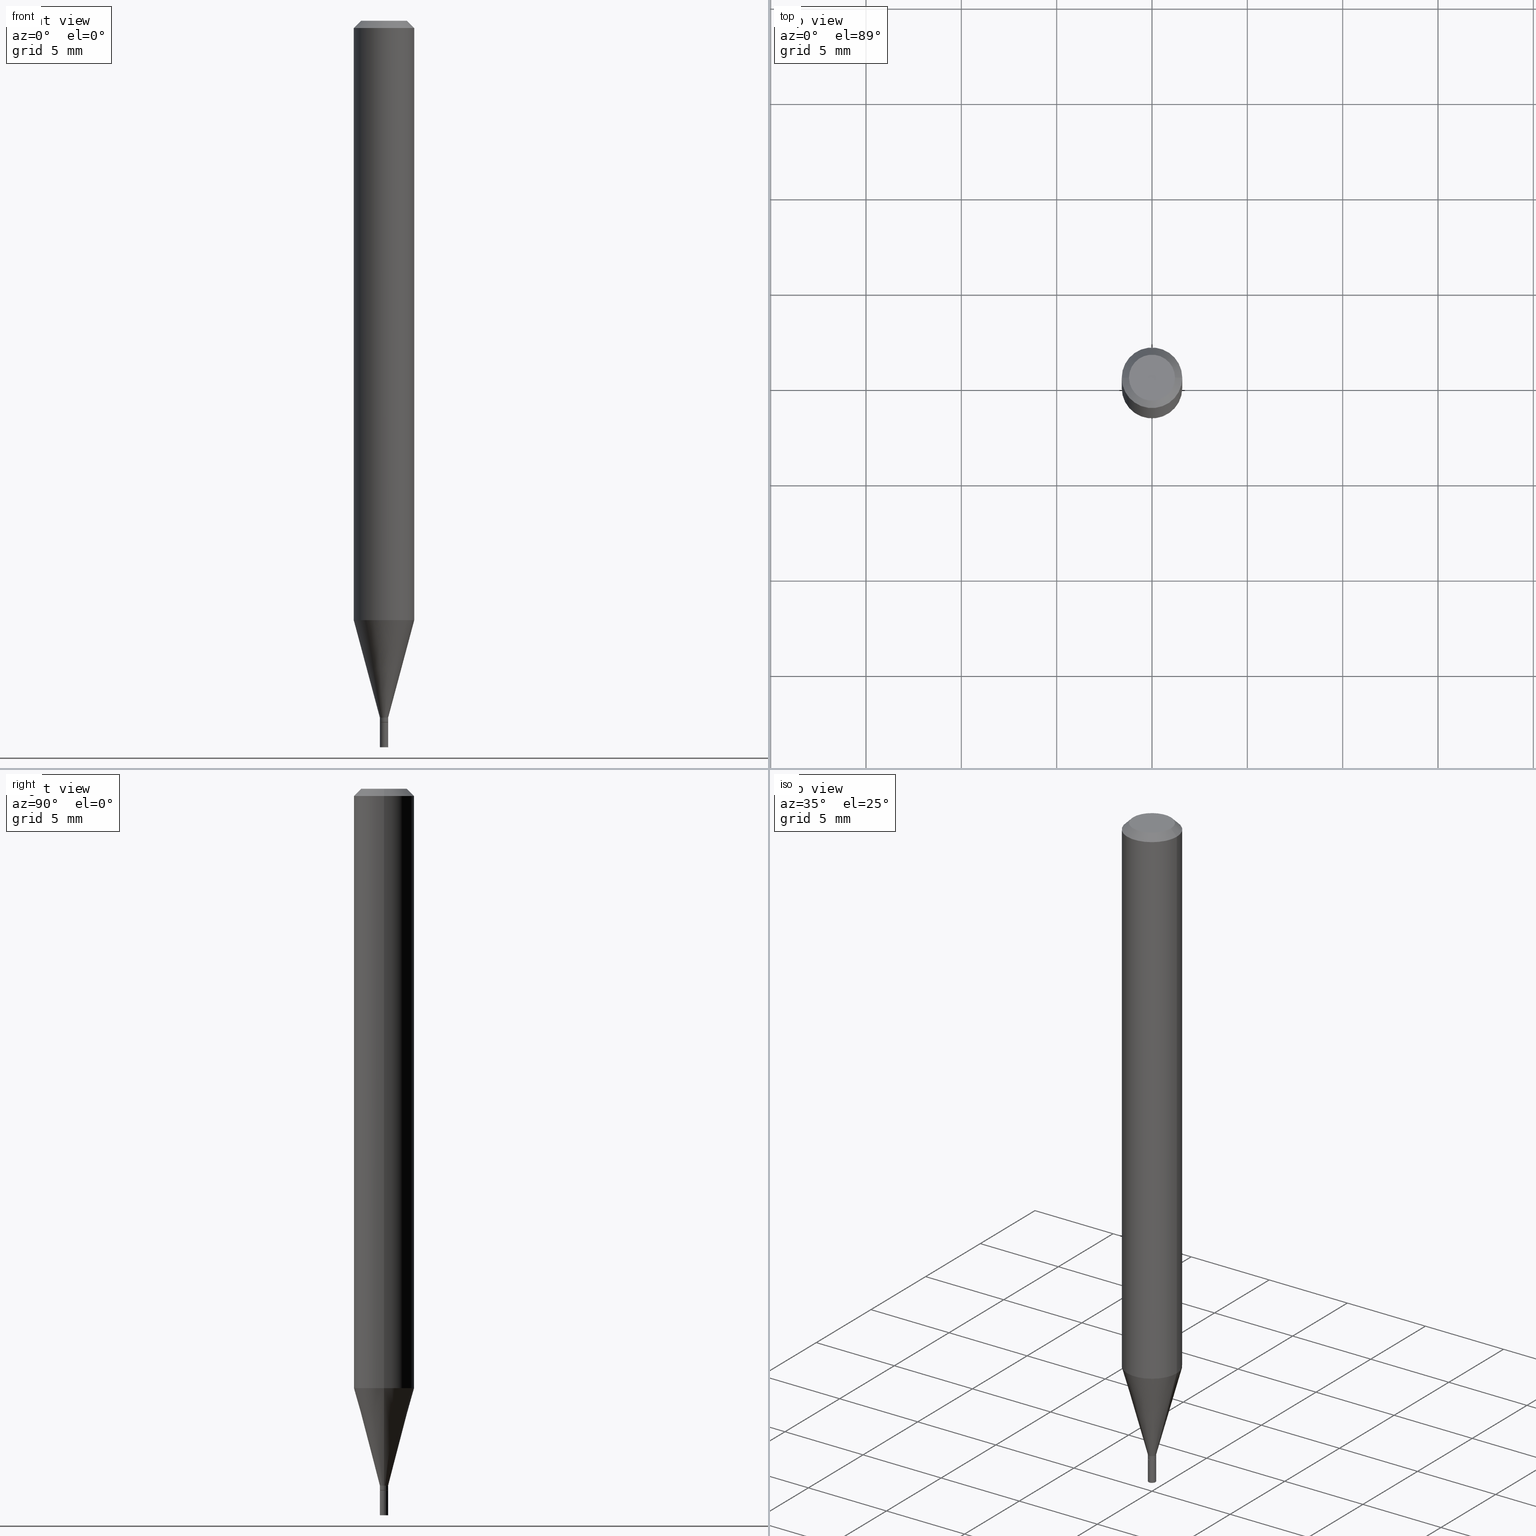
[diagram: canonical four-view strip — front | top / right | iso, engineering-drawing reading convention]
A machine part, canonical four-view strip (front | top / right | iso — engineering-drawing reading convention). The complete STEP part file that produces these views, byte-faithful:
ISO-10303-21;
HEADER;
FILE_DESCRIPTION (( 'STEP AP203' ),
    '1' );
FILE_NAME ('00526.STEP',
    '2024-03-19T21:31:26',
    ( '' ),
    ( '' ),
    'SwSTEP 2.0',
    'SolidWorks 2023',
    '' );
FILE_SCHEMA (( 'CONFIG_CONTROL_DESIGN' ));
ENDSEC;

DATA;
#1 = APPROVAL ( #323, 'UNSPECIFIED' ) ;
#2 = DATE_TIME_ROLE ( 'classification_date' ) ;
#3 = DIRECTION ( 'NONE',  ( 1.000000000000000000, -6.982962677686266711E-15, 4.876176775795935793E-29 ) ) ;
#4 = CARTESIAN_POINT ( 'NONE',  ( -0.06249999999999999306, -3.876511606232199217E-15, -1.237469256391281025 ) ) ;
#5 = SHAPE_DEFINITION_REPRESENTATION ( #379, #54 ) ;
#6 = AXIS2_PLACEMENT_3D ( 'NONE', #444, #440, #277 ) ;
#7 = DIRECTION ( 'NONE',  ( -2.445468806185136597E-29, 3.491481338843145583E-15, 1.000000000000000000 ) ) ;
#8 = ORIENTED_EDGE ( 'NONE', *, *, #185, .F. ) ;
#9 = APPLICATION_CONTEXT ( 'configuration controlled 3d designs of mechanical parts and assemblies' ) ;
#10 = EDGE_CURVE ( 'NONE', #317, #350, #342, .T. ) ;
#11 = AXIS2_PLACEMENT_3D ( 'NONE', #373, #23, #63 ) ;
#12 = EDGE_LOOP ( 'NONE', ( #376, #411, #180, #100 ) ) ;
#13 = ORIENTED_EDGE ( 'NONE', *, *, #271, .T. ) ;
#14 = AXIS2_PLACEMENT_3D ( 'NONE', #275, #372, #302 ) ;
#15 = DIRECTION ( 'NONE',  ( 2.438088387897960049E-29, -3.491481338843145188E-15, -1.000000000000000000 ) ) ;
#16 = EDGE_CURVE ( 'NONE', #371, #186, #267, .T. ) ;
#17 = CARTESIAN_POINT ( 'NONE',  ( 0.04749999999999999362, -4.035134999187553478E-16, 1.447116732001550281E-15 ) ) ;
#18 = ORIENTED_EDGE ( 'NONE', *, *, #316, .T. ) ;
#19 = CARTESIAN_POINT ( 'NONE',  ( 0.008500000000000000611, -5.296577191025051665E-15, -1.500000000000000222 ) ) ;
#20 = ORIENTED_EDGE ( 'NONE', *, *, #170, .T. ) ;
#21 = FACE_OUTER_BOUND ( 'NONE', #276, .T. ) ;
#22 = CARTESIAN_POINT ( 'NONE',  ( -0.008500000000000000611, -5.087793101584609375E-15, -1.500000000000000222 ) ) ;
#23 = DIRECTION ( 'NONE',  ( -2.445468806185136597E-29, 3.491481338843145583E-15, 1.000000000000000000 ) ) ;
#24 = CARTESIAN_POINT ( 'NONE',  ( 0.008000000000000000167, -5.115020161405208194E-15, -1.449000000000000066 ) ) ;
#25 = DIRECTION ( 'NONE',  ( -0.7071067811865642261, 7.493145998870414114E-15, 0.7071067811865309194 ) ) ;
#26 = CARTESIAN_POINT ( 'NONE',  ( -0.008499999999999922548, -4.420178560143938947E-15, -1.439000000000000057 ) ) ;
#27 = CARTESIAN_POINT ( 'NONE',  ( 0.06250000000000000000, -4.888073874380388472E-16, -0.01499999999999999944 ) ) ;
#28 = DIMENSIONAL_EXPONENTS ( 1.000000000000000000, 0.000000000000000000, 0.000000000000000000, 0.000000000000000000, 0.000000000000000000, 0.000000000000000000, 0.000000000000000000 ) ;
#29 = ORIENTED_EDGE ( 'NONE', *, *, #264, .F. ) ;
#30 = PRODUCT_RELATED_PRODUCT_CATEGORY ( 'detail', '', ( #344 ) ) ;
#31 = SECURITY_CLASSIFICATION ( '', '', #189 ) ;
#32 = EDGE_LOOP ( 'NONE', ( #90, #331 ) ) ;
#33 = ORIENTED_EDGE ( 'NONE', *, *, #146, .F. ) ;
#34 = CARTESIAN_POINT ( 'NONE',  ( 3.543484300162263247E-29, -5.059156459983718502E-15, -1.449000000000000066 ) ) ;
#35 = ORIENTED_EDGE ( 'NONE', *, *, #406, .T. ) ;
#36 = CARTESIAN_POINT ( 'NONE',  ( 3.668203209277704895E-29, -5.237222008264718177E-15, -1.500000000000000222 ) ) ;
#37 = AXIS2_PLACEMENT_3D ( 'NONE', #416, #101, #303 ) ;
#38 = LINE ( 'NONE', #110, #428 ) ;
#39 = PERSON_AND_ORGANIZATION ( #402, #333 ) ;
#40 = PERSON_AND_ORGANIZATION_ROLE ( 'design_supplier' ) ;
#41 = EDGE_CURVE ( 'NONE', #196, #165, #414, .T. ) ;
#42 = PERSON_AND_ORGANIZATION ( #402, #333 ) ;
#43 = COORDINATED_UNIVERSAL_TIME_OFFSET ( 5, 0, .BEHIND. ) ;
#44 = APPROVAL_PERSON_ORGANIZATION ( #42, #169, #120 ) ;
#45 = CYLINDRICAL_SURFACE ( 'NONE', #107, 0.06250000000000000000 ) ;
#46 = CC_DESIGN_DATE_AND_TIME_ASSIGNMENT ( #390, #127, ( #176 ) ) ;
#47 =( NAMED_UNIT ( * ) PLANE_ANGLE_UNIT ( ) SI_UNIT ( $, .RADIAN. ) );
#48 = AXIS2_PLACEMENT_3D ( 'NONE', #377, #313, #66 ) ;
#49 = CARTESIAN_POINT ( 'NONE',  ( -0.008499999999999922548, 6.039613253960796547E-17, -4.181094826716631533E-31 ) ) ;
#50 = CARTESIAN_POINT ( 'NONE',  ( 3.668203209277705088E-31, -5.237222008264718399E-17, -0.01499999999999999944 ) ) ;
#51 = CLOSED_SHELL ( 'NONE', ( #424, #238, #364, #453 ) ) ;
#52 = ORIENTED_EDGE ( 'NONE', *, *, #55, .F. ) ;
#53 = ORIENTED_EDGE ( 'NONE', *, *, #337, .F. ) ;
#54 = ADVANCED_BREP_SHAPE_REPRESENTATION ( '00526', ( #184, #190, #383 ), #433 ) ;
#55 = EDGE_CURVE ( 'NONE', #196, #363, #445, .T. ) ;
#56 = ORIENTED_EDGE ( 'NONE', *, *, #10, .T. ) ;
#57 = DIRECTION ( 'NONE',  ( -2.445468806185136597E-29, 3.491481338843145583E-15, 1.000000000000000000 ) ) ;
#58 = AXIS2_PLACEMENT_3D ( 'NONE', #36, #106, #254 ) ;
#59 = AXIS2_PLACEMENT_3D ( 'NONE', #132, #89, #198 ) ;
#60 = DIRECTION ( 'NONE',  ( 1.000000000000000000, -6.982962677686262766E-15, 0.000000000000000000 ) ) ;
#61 = VERTEX_POINT ( 'NONE', #24 ) ;
#62 = EDGE_CURVE ( 'NONE', #165, #371, #174, .T. ) ;
#63 = DIRECTION ( 'NONE',  ( 1.000000000000000000, -6.982962677686266711E-15, 4.876176775795936353E-29 ) ) ;
#64 = CARTESIAN_POINT ( 'NONE',  ( 0.000000000000000000, 0.000000000000000000, 0.000000000000000000 ) ) ;
#65 = VECTOR ( 'NONE', #145, 39.37007874015747433 ) ;
#66 = DIRECTION ( 'NONE',  ( -1.000000000000000000, 6.982962677686265922E-15, -4.876176775795935793E-29 ) ) ;
#67 = CARTESIAN_POINT ( 'NONE',  ( 0.06250000000000000000, -4.811533449433679005E-16, -0.01499999999999999944 ) ) ;
#68 = DIRECTION ( 'NONE',  ( -2.445468806185136597E-29, 3.491481338843145583E-15, 1.000000000000000000 ) ) ;
#69 = CARTESIAN_POINT ( 'NONE',  ( -0.008499999999999922548, -4.997014586774688823E-15, -1.448500000000000121 ) ) ;
#70 = AXIS2_PLACEMENT_3D ( 'NONE', #341, #113, #222 ) ;
#71 = CIRCLE ( 'NONE', #282, 0.06250000000000000000 ) ;
#72 = VERTEX_POINT ( 'NONE', #214 ) ;
#73 = DESIGN_CONTEXT ( 'detailed design', #9, 'design' ) ;
#74 = LENGTH_MEASURE_WITH_UNIT ( LENGTH_MEASURE( 0.02539999999999999897 ), #382 );
#75 = ORIENTED_EDGE ( 'NONE', *, *, #125, .T. ) ;
#76 = ORIENTED_EDGE ( 'NONE', *, *, #319, .T. ) ;
#77 = PERSON_AND_ORGANIZATION ( #402, #333 ) ;
#78 = ADVANCED_FACE ( 'NONE', ( #398 ), #45, .T. ) ;
#79 = CARTESIAN_POINT ( 'NONE',  ( 0.008500000000000000611, -5.118511642744051990E-15, -1.449000000000000066 ) ) ;
#80 = FACE_OUTER_BOUND ( 'NONE', #346, .T. ) ;
#81 = DATE_AND_TIME ( #266, #291 ) ;
#82 = APPROVAL_STATUS ( 'not_yet_approved' ) ;
#83 = CONICAL_SURFACE ( 'NONE', #225, 0.008000000000000000167, 0.7853981633974718157 ) ;
#84 = VECTOR ( 'NONE', #297, 39.37007874015748143 ) ;
#85 = DIRECTION ( 'NONE',  ( 2.445468806185136597E-29, -3.491481338843145583E-15, -1.000000000000000000 ) ) ;
#86 = ORIENTED_EDGE ( 'NONE', *, *, #210, .F. ) ;
#87 = LOCAL_TIME ( 17, 31, 26.00000000000000000, #462 ) ;
#88 = DIRECTION ( 'NONE',  ( -2.445468806185136597E-29, 3.491481338843145583E-15, 1.000000000000000000 ) ) ;
#89 = DIRECTION ( 'NONE',  ( -2.445468806185136597E-29, 3.491481338843145583E-15, 1.000000000000000000 ) ) ;
#90 = ORIENTED_EDGE ( 'NONE', *, *, #170, .F. ) ;
#91 = ADVANCED_FACE ( 'NONE', ( #232 ), #404, .T. ) ;
#92 = ADVANCED_FACE ( 'NONE', ( #164 ), #269, .F. ) ;
#93 = DIRECTION ( 'NONE',  ( -1.000000000000000000, 6.982962677686265922E-15, -4.876176775795935793E-29 ) ) ;
#94 = ORIENTED_EDGE ( 'NONE', *, *, #203, .T. ) ;
#95 = ORIENTED_EDGE ( 'NONE', *, *, #271, .F. ) ;
#96 = EDGE_CURVE ( 'NONE', #165, #166, #234, .T. ) ;
#97 = DIRECTION ( 'NONE',  ( 1.000000000000000000, -6.982962677686225690E-15, 0.000000000000000000 ) ) ;
#98 = CARTESIAN_POINT ( 'NONE',  ( -0.06250000000000000000, 4.440892098500626162E-16, -3.074334431409316114E-30 ) ) ;
#99 = FACE_OUTER_BOUND ( 'NONE', #334, .T. ) ;
#100 = ORIENTED_EDGE ( 'NONE', *, *, #360, .F. ) ;
#101 = DIRECTION ( 'NONE',  ( -2.445468806185136597E-29, 3.491481338843145583E-15, 1.000000000000000000 ) ) ;
#102 = DIRECTION ( 'NONE',  ( 1.000000000000000000, -6.982962677686267499E-15, 5.108144071313017768E-29 ) ) ;
#103 = DIRECTION ( 'NONE',  ( 0.7071067811865134889, -7.319954787623140872E-15, -0.7071067811865816566 ) ) ;
#104 = CARTESIAN_POINT ( 'NONE',  ( 0.008499999999999922548, -5.083596829355619552E-15, -1.439000000000000057 ) ) ;
#105 = ORIENTED_EDGE ( 'NONE', *, *, #403, .F. ) ;
#106 = DIRECTION ( 'NONE',  ( -2.445468806185136597E-29, 3.491481338843145583E-15, 1.000000000000000000 ) ) ;
#107 = AXIS2_PLACEMENT_3D ( 'NONE', #325, #394, #3 ) ;
#108 = CARTESIAN_POINT ( 'NONE',  ( 0.06250000000000000000, -4.364351673553916694E-16, 3.047610484872459871E-30 ) ) ;
#109 = VERTEX_POINT ( 'NONE', #412 ) ;
#110 = CARTESIAN_POINT ( 'NONE',  ( -0.008000000000000000167, -5.002313041122910436E-15, -1.449000000000000066 ) ) ;
#111 = PRODUCT_DEFINITION_FORMATION_WITH_SPECIFIED_SOURCE ( 'ANY', '', #344, .NOT_KNOWN. ) ;
#112 = AXIS2_PLACEMENT_3D ( 'NONE', #64, #426, #415 ) ;
#113 = DIRECTION ( 'NONE',  ( -2.445468806185136597E-29, 3.491481338843145583E-15, 1.000000000000000000 ) ) ;
#114 = APPROVAL_STATUS ( 'not_yet_approved' ) ;
#115 = DIRECTION ( 'NONE',  ( -2.445468806185136597E-29, 3.491481338843145583E-15, 1.000000000000000000 ) ) ;
#116 = CARTESIAN_POINT ( 'NONE',  ( 0.008499999999999922548, -5.116765902074629697E-15, -1.448500000000000121 ) ) ;
#117 = PERSON_AND_ORGANIZATION ( #402, #333 ) ;
#118 = DIRECTION ( 'NONE',  ( 1.000000000000000000, -6.982962677686266711E-15, 0.000000000000000000 ) ) ;
#119 = CC_DESIGN_APPROVAL ( #270, ( #31 ) ) ;
#120 = APPROVAL_ROLE ( '' ) ;
#121 = CC_DESIGN_PERSON_AND_ORGANIZATION_ASSIGNMENT ( #272, #465, ( #176 ) ) ;
#122 = DIRECTION ( 'NONE',  ( 1.000000000000000000, -6.982962677686225690E-15, 0.000000000000000000 ) ) ;
#123 = APPROVAL_ROLE ( '' ) ;
#124 = AXIS2_PLACEMENT_3D ( 'NONE', #380, #68, #182 ) ;
#125 = EDGE_CURVE ( 'NONE', #259, #350, #308, .T. ) ;
#126 = CARTESIAN_POINT ( 'NONE',  ( 3.668203209277705088E-31, -5.237222008264718399E-17, -0.01499999999999999944 ) ) ;
#127 = DATE_TIME_ROLE ( 'creation_date' ) ;
#128 = ADVANCED_FACE ( 'NONE', ( #179 ), #83, .T. ) ;
#129 = EDGE_LOOP ( 'NONE', ( #20, #94, #33, #281 ) ) ;
#130 = CARTESIAN_POINT ( 'NONE',  ( 3.668203209277704895E-29, -5.237222008264718177E-15, -1.500000000000000222 ) ) ;
#131 = ORIENTED_EDGE ( 'NONE', *, *, #96, .T. ) ;
#132 = CARTESIAN_POINT ( 'NONE',  ( 3.542261565759170446E-29, -5.057410719314296998E-15, -1.448500000000000121 ) ) ;
#133 = CARTESIAN_POINT ( 'NONE',  ( 3.026192465117994899E-29, -4.320600816082261833E-15, -1.237469256391281025 ) ) ;
#134 = AXIS2_PLACEMENT_3D ( 'NONE', #257, #310, #351 ) ;
#135 = ORIENTED_EDGE ( 'NONE', *, *, #221, .T. ) ;
#136 = CIRCLE ( 'NONE', #228, 0.04749999999999999362 ) ;
#137 = ORIENTED_EDGE ( 'NONE', *, *, #356, .T. ) ;
#138 = ADVANCED_FACE ( 'NONE', ( #21 ), #247, .T. ) ;
#139 = FACE_OUTER_BOUND ( 'NONE', #407, .T. ) ;
#140 = CARTESIAN_POINT ( 'NONE',  ( 3.542261565759170446E-29, -5.057410719314296998E-15, -1.448500000000000121 ) ) ;
#141 = FACE_OUTER_BOUND ( 'NONE', #215, .T. ) ;
#142 = CARTESIAN_POINT ( 'NONE',  ( 0.008499999999999922548, -5.935518276033272371E-17, 4.144750259426508219E-31 ) ) ;
#143 = FACE_OUTER_BOUND ( 'NONE', #129, .T. ) ;
#144 = AXIS2_PLACEMENT_3D ( 'NONE', #328, #15, #93 ) ;
#145 = DIRECTION ( 'NONE',  ( 0.2588190451025214611, 1.565188264969621573E-15, 0.9659258262890682012 ) ) ;
#146 = EDGE_CURVE ( 'NONE', #243, #443, #413, .T. ) ;
#147 = EDGE_LOOP ( 'NONE', ( #251, #294 ) ) ;
#148 = LINE ( 'NONE', #452, #405 ) ;
#149 = AXIS2_PLACEMENT_3D ( 'NONE', #419, #150, #212 ) ;
#150 = DIRECTION ( 'NONE',  ( -2.445468806185136597E-29, 3.491481338843145583E-15, 1.000000000000000000 ) ) ;
#151 = CONICAL_SURFACE ( 'NONE', #397, 0.06250000000000000000, 0.7853981633974000953 ) ;
#152 = EDGE_LOOP ( 'NONE', ( #208, #199, #250, #451 ) ) ;
#153 = DIRECTION ( 'NONE',  ( 1.000000000000000000, -6.982962677686267499E-15, 4.876176775795935793E-29 ) ) ;
#154 = DIRECTION ( 'NONE',  ( -2.445468806185136597E-29, 3.491481338843145583E-15, 1.000000000000000000 ) ) ;
#155 = ADVANCED_FACE ( 'NONE', ( #384 ), #220, .T. ) ;
#156 = DIRECTION ( 'NONE',  ( -2.438088387897960049E-29, 3.491481338843145188E-15, 1.000000000000000000 ) ) ;
#157 = CALENDAR_DATE ( 2024, 19, 3 ) ;
#158 = VECTOR ( 'NONE', #219, 39.37007874015748143 ) ;
#159 = DIRECTION ( 'NONE',  ( 0.000000000000000000, 0.000000000000000000, 1.000000000000000000 ) ) ;
#160 = CALENDAR_DATE ( 2024, 19, 3 ) ;
#161 = CARTESIAN_POINT ( 'NONE',  ( -0.06250000000000000000, 3.840629472727444916E-16, -0.01499999999999999944 ) ) ;
#162 = CONICAL_SURFACE ( 'NONE', #172, 0.06250000000000000000, 0.7853981633974000953 ) ;
#163 = PERSON_AND_ORGANIZATION_ROLE ( 'design_owner' ) ;
#164 = FACE_OUTER_BOUND ( 'NONE', #187, .T. ) ;
#165 = VERTEX_POINT ( 'NONE', #352 ) ;
#166 = VERTEX_POINT ( 'NONE', #26 ) ;
#167 = AXIS2_PLACEMENT_3D ( 'NONE', #130, #57, #204 ) ;
#168 = AXIS2_PLACEMENT_3D ( 'NONE', #140, #340, #97 ) ;
#169 = APPROVAL ( #114, 'UNSPECIFIED' ) ;
#170 = EDGE_CURVE ( 'NONE', #224, #425, #335, .T. ) ;
#171 = VECTOR ( 'NONE', #217, 39.37007874015748143 ) ;
#172 = AXIS2_PLACEMENT_3D ( 'NONE', #173, #305, #347 ) ;
#173 = CARTESIAN_POINT ( 'NONE',  ( 3.668203209277705088E-31, -5.237222008264718399E-17, -0.01499999999999999944 ) ) ;
#174 = LINE ( 'NONE', #104, #65 ) ;
#175 = LINE ( 'NONE', #178, #447 ) ;
#176 = PRODUCT_DEFINITION ( 'UNKNOWN', '', #111, #73 ) ;
#177 = UNCERTAINTY_MEASURE_WITH_UNIT (LENGTH_MEASURE( 1.000000000000000082E-05 ), #353, 'distance_accuracy_value', 'NONE');
#178 = CARTESIAN_POINT ( 'NONE',  ( 0.008500000000000000611, -5.935518276033327838E-17, 4.144750259426545879E-31 ) ) ;
#179 = FACE_OUTER_BOUND ( 'NONE', #329, .T. ) ;
#180 = ORIENTED_EDGE ( 'NONE', *, *, #311, .F. ) ;
#181 = DIRECTION ( 'NONE',  ( 1.000000000000000000, -6.982962677686211490E-15, 0.000000000000000000 ) ) ;
#182 = DIRECTION ( 'NONE',  ( 1.000000000000000000, -6.982962677686225690E-15, 0.000000000000000000 ) ) ;
#183 = CARTESIAN_POINT ( 'NONE',  ( 0.06249999999999999306, -4.757035983437653502E-15, -1.237469256391281025 ) ) ;
#184 = MANIFOLD_SOLID_BREP ( 'Body-Move/Copy2[1]', #51 ) ;
#185 = EDGE_CURVE ( 'NONE', #166, #165, #396, .T. ) ;
#186 = VERTEX_POINT ( 'NONE', #4 ) ;
#187 = EDGE_LOOP ( 'NONE', ( #456, #53 ) ) ;
#188 = COORDINATED_UNIVERSAL_TIME_OFFSET ( 5, 0, .BEHIND. ) ;
#189 = SECURITY_CLASSIFICATION_LEVEL ( 'unclassified' ) ;
#190 = MANIFOLD_SOLID_BREP ( 'Body-Move/Copy2[2]', #457 ) ;
#191 = DIRECTION ( 'NONE',  ( 1.000000000000000000, 0.000000000000000000, 0.000000000000000000 ) ) ;
#192 = LINE ( 'NONE', #252, #336 ) ;
#193 = APPROVAL_DATE_TIME ( #235, #270 ) ;
#194 = AXIS2_PLACEMENT_3D ( 'NONE', #260, #154, #389 ) ;
#195 = APPROVAL_PERSON_ORGANIZATION ( #431, #270, #123 ) ;
#196 = VERTEX_POINT ( 'NONE', #116 ) ;
#197 = ADVANCED_FACE ( 'NONE', ( #358 ), #151, .T. ) ;
#198 = DIRECTION ( 'NONE',  ( 1.000000000000000000, -6.982962677686225690E-15, 0.000000000000000000 ) ) ;
#199 = ORIENTED_EDGE ( 'NONE', *, *, #185, .T. ) ;
#200 = ORIENTED_EDGE ( 'NONE', *, *, #356, .F. ) ;
#201 = AXIS2_PLACEMENT_3D ( 'NONE', #244, #442, #370 ) ;
#202 = CARTESIAN_POINT ( 'NONE',  ( -0.06250000000000000000, -1.742397308232391840E-15, -0.01499999999999999944 ) ) ;
#203 = EDGE_CURVE ( 'NONE', #425, #443, #278, .T. ) ;
#204 = DIRECTION ( 'NONE',  ( 1.000000000000000000, -6.982962677686274599E-15, 0.000000000000000000 ) ) ;
#205 = CIRCLE ( 'NONE', #59, 0.008499999999999922548 ) ;
#206 = DIRECTION ( 'NONE',  ( -2.445468806185136877E-29, 3.491481338843145188E-15, 1.000000000000000000 ) ) ;
#207 = CYLINDRICAL_SURFACE ( 'NONE', #256, 0.008500000000000000611 ) ;
#208 = ORIENTED_EDGE ( 'NONE', *, *, #279, .F. ) ;
#209 = CARTESIAN_POINT ( 'NONE',  ( -0.008500000000000000611, -5.087793101584609375E-15, -1.449000000000000066 ) ) ;
#210 = EDGE_CURVE ( 'NONE', #363, #196, #205, .T. ) ;
#211 = AXIS2_PLACEMENT_3D ( 'NONE', #429, #7, #122 ) ;
#212 = DIRECTION ( 'NONE',  ( 1.000000000000000000, -6.982962677686266711E-15, 4.876176775795936353E-29 ) ) ;
#213 = DIRECTION ( 'NONE',  ( -2.445468806185136597E-29, 3.491481338843145583E-15, 1.000000000000000000 ) ) ;
#214 = CARTESIAN_POINT ( 'NONE',  ( -0.04749999999999999362, 3.578768372314235651E-16, 1.447116732001545153E-15 ) ) ;
#215 = EDGE_LOOP ( 'NONE', ( #435, #75, #345, #95 ) ) ;
#216 = CC_DESIGN_APPROVAL ( #1, ( #111 ) ) ;
#217 = DIRECTION ( 'NONE',  ( -2.445468806185136877E-29, 3.491481338843145188E-15, 1.000000000000000000 ) ) ;
#218 = APPROVAL_PERSON_ORGANIZATION ( #39, #1, #293 ) ;
#219 = DIRECTION ( 'NONE',  ( -2.445468806185136877E-29, 3.491481338843145188E-15, 1.000000000000000000 ) ) ;
#220 = CYLINDRICAL_SURFACE ( 'NONE', #149, 0.008499999999999922548 ) ;
#221 = EDGE_CURVE ( 'NONE', #186, #371, #268, .T. ) ;
#222 = DIRECTION ( 'NONE',  ( 1.000000000000000000, -6.982962677686211490E-15, 0.000000000000000000 ) ) ;
#223 = EDGE_CURVE ( 'NONE', #186, #317, #374, .T. ) ;
#224 = VERTEX_POINT ( 'NONE', #19 ) ;
#225 = AXIS2_PLACEMENT_3D ( 'NONE', #280, #343, #448 ) ;
#226 = PERSON_AND_ORGANIZATION ( #402, #333 ) ;
#227 = PERSON_AND_ORGANIZATION_ROLE ( 'creator' ) ;
#228 = AXIS2_PLACEMENT_3D ( 'NONE', #249, #375, #102 ) ;
#229 = PLANE ( 'NONE',  #144 ) ;
#230 = CALENDAR_DATE ( 2024, 19, 3 ) ;
#231 = CC_DESIGN_DATE_AND_TIME_ASSIGNMENT ( #81, #2, ( #31 ) ) ;
#232 = FACE_OUTER_BOUND ( 'NONE', #388, .T. ) ;
#233 = VECTOR ( 'NONE', #103, 39.37007874015748143 ) ;
#234 = CIRCLE ( 'NONE', #321, 0.008499999999999922548 ) ;
#235 = DATE_AND_TIME ( #230, #265 ) ;
#236 = CARTESIAN_POINT ( 'NONE',  ( 0.000000000000000000, 0.000000000000000000, 0.000000000000000000 ) ) ;
#237 = DIRECTION ( 'NONE',  ( -1.000000000000000000, 6.982962677686266711E-15, 0.000000000000000000 ) ) ;
#238 = ADVANCED_FACE ( 'NONE', ( #441 ), #246, .F. ) ;
#239 = AXIS2_PLACEMENT_3D ( 'NONE', #418, #290, #420 ) ;
#240 = ORIENTED_EDGE ( 'NONE', *, *, #360, .T. ) ;
#241 = DIRECTION ( 'NONE',  ( 1.000000000000000000, -6.982962677686266711E-15, 0.000000000000000000 ) ) ;
#242 = EDGE_LOOP ( 'NONE', ( #359, #332, #386, #439 ) ) ;
#243 = VERTEX_POINT ( 'NONE', #79 ) ;
#244 = CARTESIAN_POINT ( 'NONE',  ( 3.543484300162263247E-29, -5.059156459983718502E-15, -1.449000000000000066 ) ) ;
#245 = VECTOR ( 'NONE', #446, 39.37007874015748143 ) ;
#246 = PLANE ( 'NONE',  #14 ) ;
#247 = CYLINDRICAL_SURFACE ( 'NONE', #11, 0.008499999999999922548 ) ;
#248 = DIRECTION ( 'NONE',  ( -2.445468806185136597E-29, 3.491481338843145583E-15, 1.000000000000000000 ) ) ;
#249 = CARTESIAN_POINT ( 'NONE',  ( -3.538878827018360888E-44, 5.052581064911080951E-30, 1.447116732001547520E-15 ) ) ;
#250 = ORIENTED_EDGE ( 'NONE', *, *, #62, .T. ) ;
#251 = ORIENTED_EDGE ( 'NONE', *, *, #146, .T. ) ;
#252 = CARTESIAN_POINT ( 'NONE',  ( -0.008499999999999922548, -4.963845514055678678E-15, -1.439000000000000057 ) ) ;
#253 = FACE_OUTER_BOUND ( 'NONE', #147, .T. ) ;
#254 = DIRECTION ( 'NONE',  ( 1.000000000000000000, -6.982962677686274599E-15, 0.000000000000000000 ) ) ;
#255 = ORIENTED_EDGE ( 'NONE', *, *, #437, .T. ) ;
#256 = AXIS2_PLACEMENT_3D ( 'NONE', #285, #460, #153 ) ;
#257 = CARTESIAN_POINT ( 'NONE',  ( 0.000000000000000000, 0.000000000000000000, 0.000000000000000000 ) ) ;
#258 = AXIS2_PLACEMENT_3D ( 'NONE', #34, #213, #181 ) ;
#259 = VERTEX_POINT ( 'NONE', #17 ) ;
#260 = CARTESIAN_POINT ( 'NONE',  ( 3.519029612100411702E-29, -5.024241646595286853E-15, -1.439000000000000057 ) ) ;
#261 = APPROVAL_DATE_TIME ( #300, #169 ) ;
#262 = LINE ( 'NONE', #49, #288 ) ;
#263 = APPROVAL_DATE_TIME ( #318, #1 ) ;
#264 = EDGE_CURVE ( 'NONE', #363, #166, #262, .T. ) ;
#265 = LOCAL_TIME ( 17, 31, 26.00000000000000000, #395 ) ;
#266 = CALENDAR_DATE ( 2024, 19, 3 ) ;
#267 = CIRCLE ( 'NONE', #299, 0.06250000000000000000 ) ;
#268 = CIRCLE ( 'NONE', #458, 0.06250000000000000000 ) ;
#269 = PLANE ( 'NONE',  #369 ) ;
#270 = APPROVAL ( #82, 'UNSPECIFIED' ) ;
#271 = EDGE_CURVE ( 'NONE', #72, #317, #365, .T. ) ;
#272 = PERSON_AND_ORGANIZATION ( #402, #333 ) ;
#273 = CARTESIAN_POINT ( 'NONE',  ( -0.008500000000000000611, 6.039613253960852014E-17, -4.181094826716670069E-31 ) ) ;
#274 = DIRECTION ( 'NONE',  ( -2.445468806185136877E-29, 3.491481338843145188E-15, 1.000000000000000000 ) ) ;
#275 = CARTESIAN_POINT ( 'NONE',  ( 3.576687321579069994E-29, -5.368277968210015545E-15, -1.500000000000000222 ) ) ;
#276 = EDGE_LOOP ( 'NONE', ( #29, #461, #463, #8 ) ) ;
#277 = DIRECTION ( 'NONE',  ( 1.000000000000000000, -6.982962677686267499E-15, 5.108144071313017768E-29 ) ) ;
#278 = LINE ( 'NONE', #273, #245 ) ;
#279 = EDGE_CURVE ( 'NONE', #166, #186, #192, .T. ) ;
#280 = CARTESIAN_POINT ( 'NONE',  ( 3.543484300162263247E-29, -5.059156459983718502E-15, -1.449000000000000066 ) ) ;
#281 = ORIENTED_EDGE ( 'NONE', *, *, #406, .F. ) ;
#282 = AXIS2_PLACEMENT_3D ( 'NONE', #50, #88, #241 ) ;
#283 = ORIENTED_EDGE ( 'NONE', *, *, #223, .F. ) ;
#284 = FACE_OUTER_BOUND ( 'NONE', #381, .T. ) ;
#285 = CARTESIAN_POINT ( 'NONE',  ( 0.000000000000000000, 0.000000000000000000, 0.000000000000000000 ) ) ;
#286 = FACE_OUTER_BOUND ( 'NONE', #152, .T. ) ;
#287 = ADVANCED_FACE ( 'NONE', ( #80 ), #229, .F. ) ;
#288 = VECTOR ( 'NONE', #274, 39.37007874015748143 ) ;
#289 = LINE ( 'NONE', #108, #171 ) ;
#290 = DIRECTION ( 'NONE',  ( -2.445468806185136597E-29, 3.491481338843145583E-15, 1.000000000000000000 ) ) ;
#291 = LOCAL_TIME ( 17, 31, 26.00000000000000000, #295 ) ;
#292 = CARTESIAN_POINT ( 'NONE',  ( 3.519029612100411702E-29, -5.024241646595286853E-15, -1.439000000000000057 ) ) ;
#293 = APPROVAL_ROLE ( '' ) ;
#294 = ORIENTED_EDGE ( 'NONE', *, *, #403, .T. ) ;
#295 = COORDINATED_UNIVERSAL_TIME_OFFSET ( 5, 0, .BEHIND. ) ;
#296 = CALENDAR_DATE ( 2024, 19, 3 ) ;
#297 = DIRECTION ( 'NONE',  ( -0.7071067811865134889, 2.468850131081900101E-15, -0.7071067811865816566 ) ) ;
#298 = CC_DESIGN_PERSON_AND_ORGANIZATION_ASSIGNMENT ( #320, #392, ( #31 ) ) ;
#299 = AXIS2_PLACEMENT_3D ( 'NONE', #133, #368, #60 ) ;
#300 = DATE_AND_TIME ( #157, #87 ) ;
#301 = CC_DESIGN_PERSON_AND_ORGANIZATION_ASSIGNMENT ( #77, #227, ( #111 ) ) ;
#302 = DIRECTION ( 'NONE',  ( 1.000000000000000000, -6.982962677686265922E-15, 4.876176775795935793E-29 ) ) ;
#303 = DIRECTION ( 'NONE',  ( 1.000000000000000000, -6.982962677686274599E-15, 0.000000000000000000 ) ) ;
#304 = ADVANCED_FACE ( 'NONE', ( #139 ), #393, .T. ) ;
#305 = DIRECTION ( 'NONE',  ( 2.445468806185136597E-29, -3.491481338843145583E-15, -1.000000000000000000 ) ) ;
#306 = DIRECTION ( 'NONE',  ( 0.7071067811865642261, -2.468850131082431399E-15, 0.7071067811865309194 ) ) ;
#307 = ORIENTED_EDGE ( 'NONE', *, *, #10, .F. ) ;
#308 = LINE ( 'NONE', #67, #233 ) ;
#309 = ORIENTED_EDGE ( 'NONE', *, *, #432, .T. ) ;
#310 = DIRECTION ( 'NONE',  ( -2.445468806185136597E-29, 3.491481338843145583E-15, 1.000000000000000000 ) ) ;
#311 = EDGE_CURVE ( 'NONE', #350, #317, #71, .T. ) ;
#312 = ORIENTED_EDGE ( 'NONE', *, *, #337, .T. ) ;
#313 = DIRECTION ( 'NONE',  ( 2.438088387897960049E-29, -3.491481338843145188E-15, -1.000000000000000000 ) ) ;
#314 = VECTOR ( 'NONE', #206, 39.37007874015748143 ) ;
#315 = CYLINDRICAL_SURFACE ( 'NONE', #134, 0.06250000000000000000 ) ;
#316 = EDGE_CURVE ( 'NONE', #259, #72, #408, .T. ) ;
#317 = VERTEX_POINT ( 'NONE', #202 ) ;
#318 = DATE_AND_TIME ( #160, #362 ) ;
#319 = EDGE_CURVE ( 'NONE', #425, #224, #450, .T. ) ;
#320 = PERSON_AND_ORGANIZATION ( #402, #333 ) ;
#321 = AXIS2_PLACEMENT_3D ( 'NONE', #292, #115, #466 ) ;
#322 = APPLICATION_PROTOCOL_DEFINITION ( 'international standard', 'config_control_design', 1994, #400 ) ;
#323 = APPROVAL_STATUS ( 'not_yet_approved' ) ;
#324 = CONICAL_SURFACE ( 'NONE', #194, 0.008499999999999922548, 0.2617993877991501295 ) ;
#325 = CARTESIAN_POINT ( 'NONE',  ( 0.000000000000000000, 0.000000000000000000, 0.000000000000000000 ) ) ;
#326 = CIRCLE ( 'NONE', #70, 0.008000000000000000167 ) ;
#327 = ORIENTED_EDGE ( 'NONE', *, *, #349, .F. ) ;
#328 = CARTESIAN_POINT ( 'NONE',  ( 3.316907271900976096E-16, 0.04749999999999999362, 5.577130024057243141E-16 ) ) ;
#329 = EDGE_LOOP ( 'NONE', ( #309, #137, #52, #327 ) ) ;
#330 = CC_DESIGN_PERSON_AND_ORGANIZATION_ASSIGNMENT ( #226, #163, ( #344 ) ) ;
#331 = ORIENTED_EDGE ( 'NONE', *, *, #319, .F. ) ;
#332 = ORIENTED_EDGE ( 'NONE', *, *, #264, .T. ) ;
#333 = ORGANIZATION ( 'UNSPECIFIED', 'UNSPECIFIED', '' ) ;
#334 = EDGE_LOOP ( 'NONE', ( #283, #135, #240, #307 ) ) ;
#335 = CIRCLE ( 'NONE', #58, 0.008500000000000000611 ) ;
#336 = VECTOR ( 'NONE', #459, 39.37007874015747433 ) ;
#337 = EDGE_CURVE ( 'NONE', #109, #61, #326, .T. ) ;
#338 = ORIENTED_EDGE ( 'NONE', *, *, #62, .F. ) ;
#339 = PLANE ( 'NONE',  #48 ) ;
#340 = DIRECTION ( 'NONE',  ( -2.445468806185136597E-29, 3.491481338843145583E-15, 1.000000000000000000 ) ) ;
#341 = CARTESIAN_POINT ( 'NONE',  ( 3.543484300162263247E-29, -5.059156459983718502E-15, -1.449000000000000066 ) ) ;
#342 = CIRCLE ( 'NONE', #354, 0.06250000000000000000 ) ;
#343 = DIRECTION ( 'NONE',  ( -2.445468806185136597E-29, 3.491481338843145583E-15, 1.000000000000000000 ) ) ;
#344 = PRODUCT ( '00526', '00526', '', ( #434 ) ) ;
#345 = ORIENTED_EDGE ( 'NONE', *, *, #311, .T. ) ;
#346 = EDGE_LOOP ( 'NONE', ( #255, #18 ) ) ;
#347 = DIRECTION ( 'NONE',  ( -1.000000000000000000, 6.982962677686266711E-15, 0.000000000000000000 ) ) ;
#348 = ADVANCED_FACE ( 'NONE', ( #141 ), #162, .T. ) ;
#349 = EDGE_CURVE ( 'NONE', #61, #196, #148, .T. ) ;
#350 = VERTEX_POINT ( 'NONE', #27 ) ;
#351 = DIRECTION ( 'NONE',  ( 1.000000000000000000, -6.982962677686266711E-15, 4.876176775795935793E-29 ) ) ;
#352 = CARTESIAN_POINT ( 'NONE',  ( 0.008499999999999922548, -5.083596829355619552E-15, -1.439000000000000057 ) ) ;
#353 =( CONVERSION_BASED_UNIT ( 'INCH', #74 ) LENGTH_UNIT ( ) NAMED_UNIT ( #28 ) );
#354 = AXIS2_PLACEMENT_3D ( 'NONE', #438, #430, #118 ) ;
#355 = ORIENTED_EDGE ( 'NONE', *, *, #349, .T. ) ;
#356 = EDGE_CURVE ( 'NONE', #109, #363, #38, .T. ) ;
#357 =( NAMED_UNIT ( * ) SI_UNIT ( $, .STERADIAN. ) SOLID_ANGLE_UNIT ( ) );
#358 = FACE_OUTER_BOUND ( 'NONE', #427, .T. ) ;
#359 = ORIENTED_EDGE ( 'NONE', *, *, #55, .T. ) ;
#360 = EDGE_CURVE ( 'NONE', #371, #350, #289, .T. ) ;
#361 = APPLICATION_PROTOCOL_DEFINITION ( 'international standard', 'config_control_design', 1994, #9 ) ;
#362 = LOCAL_TIME ( 17, 31, 26.00000000000000000, #188 ) ;
#363 = VERTEX_POINT ( 'NONE', #69 ) ;
#364 = ADVANCED_FACE ( 'NONE', ( #284 ), #421, .T. ) ;
#365 = LINE ( 'NONE', #161, #84 ) ;
#366 = ORIENTED_EDGE ( 'NONE', *, *, #279, .T. ) ;
#367 = CC_DESIGN_SECURITY_CLASSIFICATION ( #31, ( #111 ) ) ;
#368 = DIRECTION ( 'NONE',  ( -2.445468806185136597E-29, 3.491481338843145583E-15, 1.000000000000000000 ) ) ;
#369 = AXIS2_PLACEMENT_3D ( 'NONE', #401, #156, #464 ) ;
#370 = DIRECTION ( 'NONE',  ( 1.000000000000000000, -6.982962677686211490E-15, 0.000000000000000000 ) ) ;
#371 = VERTEX_POINT ( 'NONE', #183 ) ;
#372 = DIRECTION ( 'NONE',  ( -2.438088387897960049E-29, 3.491481338843145188E-15, 1.000000000000000000 ) ) ;
#373 = CARTESIAN_POINT ( 'NONE',  ( 0.000000000000000000, 0.000000000000000000, 0.000000000000000000 ) ) ;
#374 = LINE ( 'NONE', #98, #314 ) ;
#375 = DIRECTION ( 'NONE',  ( -2.445468806185136597E-29, 3.491481338843145583E-15, 1.000000000000000000 ) ) ;
#376 = ORIENTED_EDGE ( 'NONE', *, *, #16, .T. ) ;
#377 = CARTESIAN_POINT ( 'NONE',  ( 5.935518276036870316E-17, 0.008499999999994942157, -1.449000000000000066 ) ) ;
#378 = ADVANCED_FACE ( 'NONE', ( #286 ), #324, .T. ) ;
#379 = PRODUCT_DEFINITION_SHAPE ( 'NONE', 'NONE',  #176 ) ;
#380 = CARTESIAN_POINT ( 'NONE',  ( 3.519029612100411702E-29, -5.024241646595286853E-15, -1.439000000000000057 ) ) ;
#381 = EDGE_LOOP ( 'NONE', ( #391, #76, #35, #105 ) ) ;
#382 =( LENGTH_UNIT ( ) NAMED_UNIT ( * ) SI_UNIT ( $, .METRE. ) );
#383 = AXIS2_PLACEMENT_3D ( 'NONE', #236, #159, #191 ) ;
#384 = FACE_OUTER_BOUND ( 'NONE', #242, .T. ) ;
#385 = ORIENTED_EDGE ( 'NONE', *, *, #125, .F. ) ;
#386 = ORIENTED_EDGE ( 'NONE', *, *, #96, .F. ) ;
#387 = CC_DESIGN_APPROVAL ( #169, ( #176 ) ) ;
#388 = EDGE_LOOP ( 'NONE', ( #131, #366, #449, #338 ) ) ;
#389 = DIRECTION ( 'NONE',  ( 1.000000000000000000, -6.982962677686225690E-15, 0.000000000000000000 ) ) ;
#390 = DATE_AND_TIME ( #296, #455 ) ;
#391 = ORIENTED_EDGE ( 'NONE', *, *, #203, .F. ) ;
#392 = PERSON_AND_ORGANIZATION_ROLE ( 'classification_officer' ) ;
#393 = CONICAL_SURFACE ( 'NONE', #201, 0.008000000000000000167, 0.7853981633974718157 ) ;
#394 = DIRECTION ( 'NONE',  ( -2.445468806185136597E-29, 3.491481338843145583E-15, 1.000000000000000000 ) ) ;
#395 = COORDINATED_UNIVERSAL_TIME_OFFSET ( 5, 0, .BEHIND. ) ;
#396 = CIRCLE ( 'NONE', #124, 0.008499999999999922548 ) ;
#397 = AXIS2_PLACEMENT_3D ( 'NONE', #126, #85, #237 ) ;
#398 = FACE_OUTER_BOUND ( 'NONE', #12, .T. ) ;
#399 = CARTESIAN_POINT ( 'NONE',  ( 3.026192465117994899E-29, -4.320600816082261833E-15, -1.237469256391281025 ) ) ;
#400 = APPLICATION_CONTEXT ( 'configuration controlled 3d designs of mechanical parts and assemblies' ) ;
#401 = CARTESIAN_POINT ( 'NONE',  ( 3.543484300162263247E-29, -5.059156459983718502E-15, -1.449000000000000066 ) ) ;
#402 = PERSON ( 'UNSPECIFIED', 'UNSPECIFIED', 'UNSPECIFIED', ('UNSPECIFIED'), ('UNSPECIFIED'), ('UNSPECIFIED') ) ;
#403 = EDGE_CURVE ( 'NONE', #443, #243, #417, .T. ) ;
#404 = CONICAL_SURFACE ( 'NONE', #211, 0.008499999999999922548, 0.2617993877991501295 ) ;
#405 = VECTOR ( 'NONE', #306, 39.37007874015748143 ) ;
#406 = EDGE_CURVE ( 'NONE', #224, #243, #175, .T. ) ;
#407 = EDGE_LOOP ( 'NONE', ( #200, #312, #355, #86 ) ) ;
#408 = CIRCLE ( 'NONE', #6, 0.04749999999999999362 ) ;
#409 = ADVANCED_FACE ( 'NONE', ( #99 ), #315, .T. ) ;
#410 = DIRECTION ( 'NONE',  ( 1.000000000000000000, -6.982962677686262766E-15, 0.000000000000000000 ) ) ;
#411 = ORIENTED_EDGE ( 'NONE', *, *, #223, .T. ) ;
#412 = CARTESIAN_POINT ( 'NONE',  ( -0.008000000000000000167, -4.999663813948800024E-15, -1.449000000000000066 ) ) ;
#413 = CIRCLE ( 'NONE', #37, 0.008500000000000000611 ) ;
#414 = LINE ( 'NONE', #142, #158 ) ;
#415 = DIRECTION ( 'NONE',  ( 1.000000000000000000, -6.982962677686267499E-15, 4.876176775795935793E-29 ) ) ;
#416 = CARTESIAN_POINT ( 'NONE',  ( 3.543484300162263247E-29, -5.059156459983718502E-15, -1.449000000000000066 ) ) ;
#417 = CIRCLE ( 'NONE', #239, 0.008500000000000000611 ) ;
#418 = CARTESIAN_POINT ( 'NONE',  ( 3.543484300162263247E-29, -5.059156459983718502E-15, -1.449000000000000066 ) ) ;
#419 = CARTESIAN_POINT ( 'NONE',  ( 0.000000000000000000, 0.000000000000000000, 0.000000000000000000 ) ) ;
#420 = DIRECTION ( 'NONE',  ( 1.000000000000000000, -6.982962677686274599E-15, 0.000000000000000000 ) ) ;
#421 = CYLINDRICAL_SURFACE ( 'NONE', #112, 0.008500000000000000611 ) ;
#422 = CC_DESIGN_PERSON_AND_ORGANIZATION_ASSIGNMENT ( #117, #40, ( #111 ) ) ;
#423 = CIRCLE ( 'NONE', #258, 0.008000000000000000167 ) ;
#424 = ADVANCED_FACE ( 'NONE', ( #143 ), #207, .T. ) ;
#425 = VERTEX_POINT ( 'NONE', #22 ) ;
#426 = DIRECTION ( 'NONE',  ( -2.445468806185136597E-29, 3.491481338843145583E-15, 1.000000000000000000 ) ) ;
#427 = EDGE_LOOP ( 'NONE', ( #385, #436, #13, #56 ) ) ;
#428 = VECTOR ( 'NONE', #25, 39.37007874015748143 ) ;
#429 = CARTESIAN_POINT ( 'NONE',  ( 3.519029612100411702E-29, -5.024241646595286853E-15, -1.439000000000000057 ) ) ;
#430 = DIRECTION ( 'NONE',  ( -2.445468806185136597E-29, 3.491481338843145583E-15, 1.000000000000000000 ) ) ;
#431 = PERSON_AND_ORGANIZATION ( #402, #333 ) ;
#432 = EDGE_CURVE ( 'NONE', #61, #109, #423, .T. ) ;
#433 =( GEOMETRIC_REPRESENTATION_CONTEXT ( 3 ) GLOBAL_UNCERTAINTY_ASSIGNED_CONTEXT ( ( #177 ) ) GLOBAL_UNIT_ASSIGNED_CONTEXT ( ( #353, #47, #357 ) ) REPRESENTATION_CONTEXT ( 'NONE', 'WORKASPACE' ) );
#434 = MECHANICAL_CONTEXT ( 'NONE', #400, 'mechanical' ) ;
#435 = ORIENTED_EDGE ( 'NONE', *, *, #316, .F. ) ;
#436 = ORIENTED_EDGE ( 'NONE', *, *, #437, .F. ) ;
#437 = EDGE_CURVE ( 'NONE', #72, #259, #136, .T. ) ;
#438 = CARTESIAN_POINT ( 'NONE',  ( 3.668203209277705088E-31, -5.237222008264718399E-17, -0.01499999999999999944 ) ) ;
#439 = ORIENTED_EDGE ( 'NONE', *, *, #41, .F. ) ;
#440 = DIRECTION ( 'NONE',  ( -2.445468806185136597E-29, 3.491481338843145583E-15, 1.000000000000000000 ) ) ;
#441 = FACE_OUTER_BOUND ( 'NONE', #32, .T. ) ;
#442 = DIRECTION ( 'NONE',  ( -2.445468806185136597E-29, 3.491481338843145583E-15, 1.000000000000000000 ) ) ;
#443 = VERTEX_POINT ( 'NONE', #209 ) ;
#444 = CARTESIAN_POINT ( 'NONE',  ( -3.538878827018360888E-44, 5.052581064911080951E-30, 1.447116732001547520E-15 ) ) ;
#445 = CIRCLE ( 'NONE', #168, 0.008499999999999922548 ) ;
#446 = DIRECTION ( 'NONE',  ( -2.445468806185136877E-29, 3.491481338843145188E-15, 1.000000000000000000 ) ) ;
#447 = VECTOR ( 'NONE', #454, 39.37007874015748143 ) ;
#448 = DIRECTION ( 'NONE',  ( 1.000000000000000000, -6.982962677686211490E-15, 0.000000000000000000 ) ) ;
#449 = ORIENTED_EDGE ( 'NONE', *, *, #16, .F. ) ;
#450 = CIRCLE ( 'NONE', #167, 0.008500000000000000611 ) ;
#451 = ORIENTED_EDGE ( 'NONE', *, *, #221, .F. ) ;
#452 = CARTESIAN_POINT ( 'NONE',  ( 0.008000000000000000167, -5.115020161405208194E-15, -1.449000000000000066 ) ) ;
#453 = ADVANCED_FACE ( 'NONE', ( #253 ), #339, .F. ) ;
#454 = DIRECTION ( 'NONE',  ( -2.445468806185136877E-29, 3.491481338843145188E-15, 1.000000000000000000 ) ) ;
#455 = LOCAL_TIME ( 17, 31, 26.00000000000000000, #43 ) ;
#456 = ORIENTED_EDGE ( 'NONE', *, *, #432, .F. ) ;
#457 = CLOSED_SHELL ( 'NONE', ( #155, #128, #348, #78, #91, #378, #409, #197, #287, #92, #304, #138 ) ) ;
#458 = AXIS2_PLACEMENT_3D ( 'NONE', #399, #248, #410 ) ;
#459 = DIRECTION ( 'NONE',  ( -0.2588190451025214611, 5.211531920934551042E-15, 0.9659258262890682012 ) ) ;
#460 = DIRECTION ( 'NONE',  ( -2.445468806185136597E-29, 3.491481338843145583E-15, 1.000000000000000000 ) ) ;
#461 = ORIENTED_EDGE ( 'NONE', *, *, #210, .T. ) ;
#462 = COORDINATED_UNIVERSAL_TIME_OFFSET ( 5, 0, .BEHIND. ) ;
#463 = ORIENTED_EDGE ( 'NONE', *, *, #41, .T. ) ;
#464 = DIRECTION ( 'NONE',  ( 1.000000000000000000, -6.982962677686265922E-15, 4.876176775795935793E-29 ) ) ;
#465 = PERSON_AND_ORGANIZATION_ROLE ( 'creator' ) ;
#466 = DIRECTION ( 'NONE',  ( 1.000000000000000000, -6.982962677686225690E-15, 0.000000000000000000 ) ) ;
ENDSEC;
END-ISO-10303-21;
